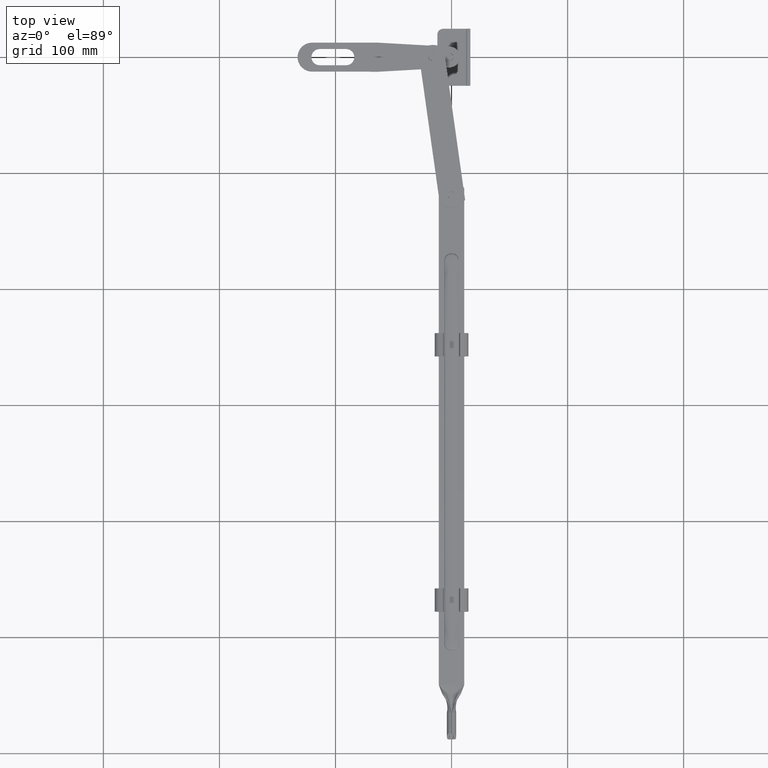
[diagram: clean part render]
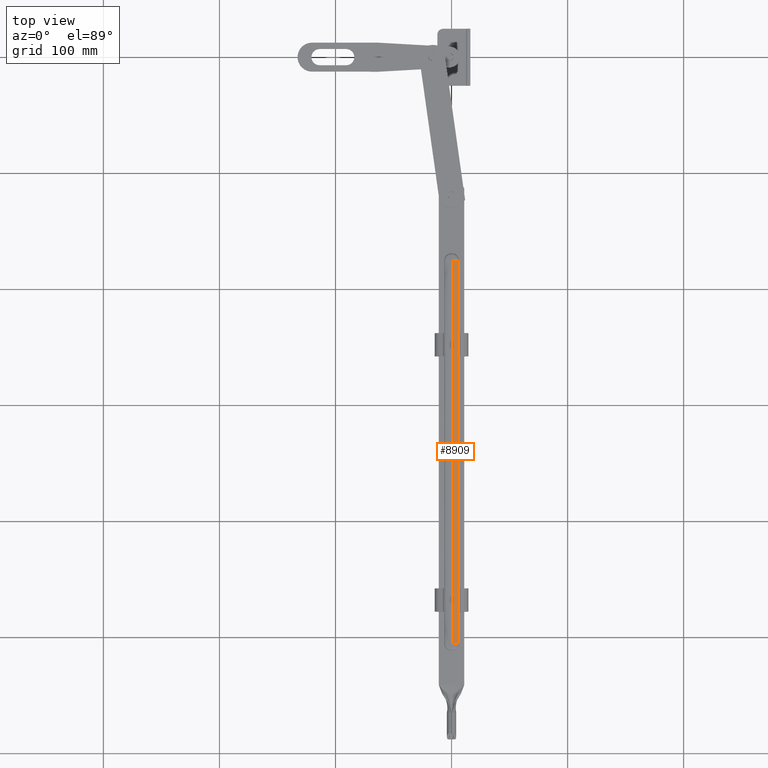
[diagram: same view with one face highlighted and labeled with its STEP entity id]
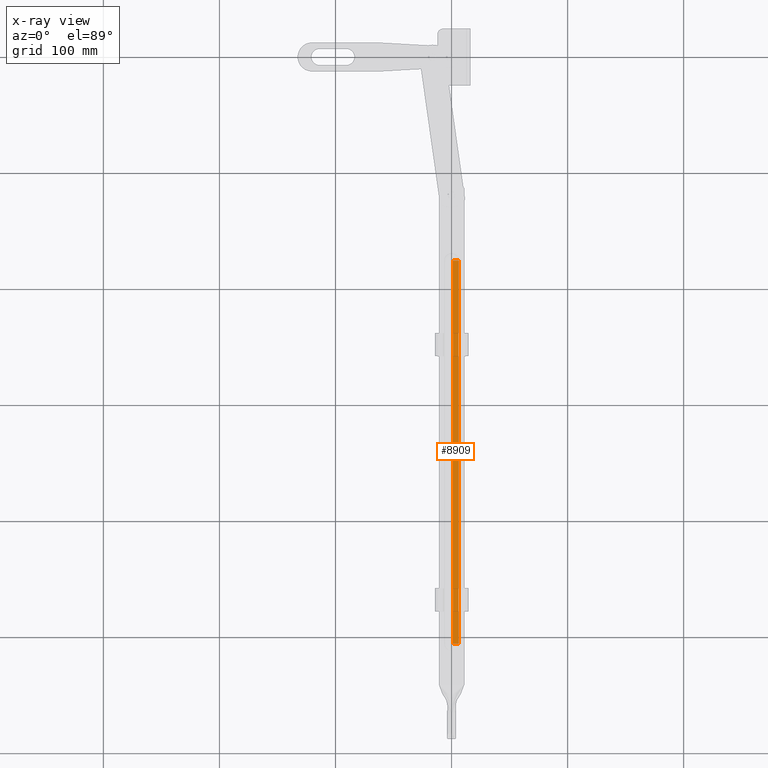
[diagram: x-ray of the same camera — body ghosted, the highlighted face saturated]
A machine part, top view. The second image highlights one B-rep face of the part: STEP entity #8909.
The next image is the same camera in x-ray: the body ghosted, the highlighted face saturated — about 0% of this face is hidden behind the body in this view.
In plain terms, the highlighted face is a freeform B-spline surface patch.
Its self-contained STEP definition (entity closure, byte-faithful):
#287 = EDGE_CURVE ( 'NONE', #12168, #15439, #16303, .T. ) ;
#411 = FACE_OUTER_BOUND ( 'NONE', #5045, .T. ) ;
#433 = EDGE_CURVE ( 'NONE', #6588, #12168, #10419, .T. ) ;
#669 = CARTESIAN_POINT ( 'NONE',  ( 6.000000000000021316, -157.5000000000000000, 2.000000000000000444 ) ) ;
#1400 = CARTESIAN_POINT ( 'NONE',  ( 1.000000000000020872, -157.4999999999999716, 2.500000000000000444 ) ) ;
#1734 = ORIENTED_EDGE ( 'NONE', *, *, #4986, .T. ) ;
#1867 = CARTESIAN_POINT ( 'NONE',  ( 6.000000000000021316, -47.50000000000002842, 2.000000000000000444 ) ) ;
#2197 =( BOUNDED_SURFACE ( )  B_SPLINE_SURFACE ( 2, 3, ( 
 ( #12401, #13658, #14977, #669 ),
 ( #8440, #13600, #14916, #7223 ),
 ( #13714, #13549, #15022, #7012 ) ),
 .UNSPECIFIED., .F., .F., .F. ) 
 B_SPLINE_SURFACE_WITH_KNOTS ( ( 3, 3 ),
 ( 4, 4 ),
 ( 0.000000000000000000, 1.000000000000000000 ),
 ( -0.1725000000000000422, 0.1574999999999999734 ),
 .UNSPECIFIED. ) 
 GEOMETRIC_REPRESENTATION_ITEM ( )  RATIONAL_B_SPLINE_SURFACE ( (
 ( 1.000000000000000000, 1.000000000000000000, 1.000000000000000000, 1.000000000000000000),
 ( 0.7071067811865475727, 0.7071067811865475727, 0.7071067811865475727, 0.7071067811865475727),
 ( 1.000000000000000000, 1.000000000000000000, 1.000000000000000000, 1.000000000000000000) ) ) 
 REPRESENTATION_ITEM ( '' )  SURFACE ( )  );
#2232 = CARTESIAN_POINT ( 'NONE',  ( 6.000000000000021316, -157.4999999999999716, 2.000000000000000444 ) ) ;
#2512 = B_SPLINE_CURVE_WITH_KNOTS ( 'NONE', 3,
 ( #12022, #9632, #10829, #6895 ),
 .UNSPECIFIED., .F., .F.,
 ( 4, 4 ),
 ( 0.000000000000000000, 1.000000000000000000 ),
 .UNSPECIFIED. ) ;
#2726 = ORIENTED_EDGE ( 'NONE', *, *, #287, .T. ) ;
#4986 = EDGE_CURVE ( 'NONE', #15439, #10938, #11876, .T. ) ;
#5045 = EDGE_LOOP ( 'NONE', ( #15126, #2726, #1734, #13051 ) ) ;
#5390 = CARTESIAN_POINT ( 'NONE',  ( 1.000000000000020872, -157.4999999999999716, 2.500000000000000444 ) ) ;
#5414 = CARTESIAN_POINT ( 'NONE',  ( 6.000000000000021316, -157.4999999999999716, 2.000000000000000444 ) ) ;
#5812 = CARTESIAN_POINT ( 'NONE',  ( 6.000000000000021316, 172.5000000000000284, 2.000000000000000444 ) ) ;
#6438 = CARTESIAN_POINT ( 'NONE',  ( 1.000000000000020872, 172.5000000000000284, 2.500000000000000444 ) ) ;
#6588 = VERTEX_POINT ( 'NONE', #5390 ) ;
#6895 = CARTESIAN_POINT ( 'NONE',  ( 1.000000000000020872, 172.5000000000000284, 2.500000000000000444 ) ) ;
#7012 = CARTESIAN_POINT ( 'NONE',  ( 1.000000000000020872, -157.5000000000000000, 2.500000000000000444 ) ) ;
#7223 = CARTESIAN_POINT ( 'NONE',  ( 6.000000000000021316, -157.5000000000000000, 2.500000000000000444 ) ) ;
#7497 = EDGE_CURVE ( 'NONE', #6588, #10938, #2512, .T. ) ;
#8434 = CARTESIAN_POINT ( 'NONE',  ( 6.000000000000021316, -157.4999999999999716, 2.000000000000000444 ) ) ;
#8440 = CARTESIAN_POINT ( 'NONE',  ( 6.000000000000021316, 172.5000000000000568, 2.500000000000000444 ) ) ;
#8909 = ADVANCED_FACE ( 'NONE', ( #411 ), #2197, .T. ) ;
#9632 = CARTESIAN_POINT ( 'NONE',  ( 1.000000000000020872, -47.49999999999998579, 2.500000000000000444 ) ) ;
#10201 = CARTESIAN_POINT ( 'NONE',  ( 6.000000000000021316, 172.5000000000000284, 2.000000000000000444 ) ) ;
#10333 = CARTESIAN_POINT ( 'NONE',  ( 6.000000000000021316, 172.5000000000000284, 2.000000000000000444 ) ) ;
#10419 =( BOUNDED_CURVE ( )  B_SPLINE_CURVE ( 2, ( #1400, #15808, #5414 ),
 .UNSPECIFIED., .F., .F. ) 
 B_SPLINE_CURVE_WITH_KNOTS ( ( 3, 3 ),
 ( 0.000000000000000000, 1.000000000000000000 ),
 .UNSPECIFIED. ) 
 CURVE ( )  GEOMETRIC_REPRESENTATION_ITEM ( )  RATIONAL_B_SPLINE_CURVE ( ( 1.000000000000000000, 0.7071067811865475727, 1.000000000000000000 ) ) 
 REPRESENTATION_ITEM ( '' )  );
#10829 = CARTESIAN_POINT ( 'NONE',  ( 1.000000000000020872, 62.50000000000002842, 2.500000000000000444 ) ) ;
#10938 = VERTEX_POINT ( 'NONE', #15615 ) ;
#11046 = CARTESIAN_POINT ( 'NONE',  ( 6.000000000000021316, 62.50000000000005684, 2.000000000000000444 ) ) ;
#11876 =( BOUNDED_CURVE ( )  B_SPLINE_CURVE ( 2, ( #10333, #16778, #6438 ),
 .UNSPECIFIED., .F., .T. ) 
 B_SPLINE_CURVE_WITH_KNOTS ( ( 3, 3 ),
 ( 0.000000000000000000, 1.000000000000000000 ),
 .UNSPECIFIED. ) 
 CURVE ( )  GEOMETRIC_REPRESENTATION_ITEM ( )  RATIONAL_B_SPLINE_CURVE ( ( 1.000000000000000000, 0.7071067811865475727, 1.000000000000000000 ) ) 
 REPRESENTATION_ITEM ( '' )  );
#12022 = CARTESIAN_POINT ( 'NONE',  ( 1.000000000000020872, -157.4999999999999716, 2.500000000000000444 ) ) ;
#12168 = VERTEX_POINT ( 'NONE', #2232 ) ;
#12401 = CARTESIAN_POINT ( 'NONE',  ( 6.000000000000021316, 172.5000000000000284, 2.000000000000000444 ) ) ;
#13051 = ORIENTED_EDGE ( 'NONE', *, *, #7497, .F. ) ;
#13549 = CARTESIAN_POINT ( 'NONE',  ( 1.000000000000020872, 62.50000000000005684, 2.500000000000000444 ) ) ;
#13600 = CARTESIAN_POINT ( 'NONE',  ( 6.000000000572479841, 62.50000000000002842, 2.500000000000000444 ) ) ;
#13658 = CARTESIAN_POINT ( 'NONE',  ( 6.000000000000021316, 62.50000000000005684, 2.000000000000000444 ) ) ;
#13714 = CARTESIAN_POINT ( 'NONE',  ( 1.000000000000020872, 172.5000000000000284, 2.500000000000000444 ) ) ;
#14916 = CARTESIAN_POINT ( 'NONE',  ( 6.000000000000021316, -47.49999999999997868, 2.500000000000000444 ) ) ;
#14977 = CARTESIAN_POINT ( 'NONE',  ( 6.000000000000021316, -47.50000000000002842, 2.000000000000000444 ) ) ;
#15022 = CARTESIAN_POINT ( 'NONE',  ( 1.000000000000020872, -47.50000000000002842, 2.500000000000000444 ) ) ;
#15126 = ORIENTED_EDGE ( 'NONE', *, *, #433, .T. ) ;
#15439 = VERTEX_POINT ( 'NONE', #10201 ) ;
#15615 = CARTESIAN_POINT ( 'NONE',  ( 1.000000000000020872, 172.5000000000000284, 2.500000000000000444 ) ) ;
#15808 = CARTESIAN_POINT ( 'NONE',  ( 6.000000000000021316, -157.5000000000000000, 2.500000000000000444 ) ) ;
#16303 = B_SPLINE_CURVE_WITH_KNOTS ( 'NONE', 3,
 ( #8434, #1867, #11046, #5812 ),
 .UNSPECIFIED., .F., .F.,
 ( 4, 4 ),
 ( 0.000000000000000000, 1.000000000000000000 ),
 .UNSPECIFIED. ) ;
#16778 = CARTESIAN_POINT ( 'NONE',  ( 6.000000000000021316, 172.5000000000000568, 2.500000000000000444 ) ) ;